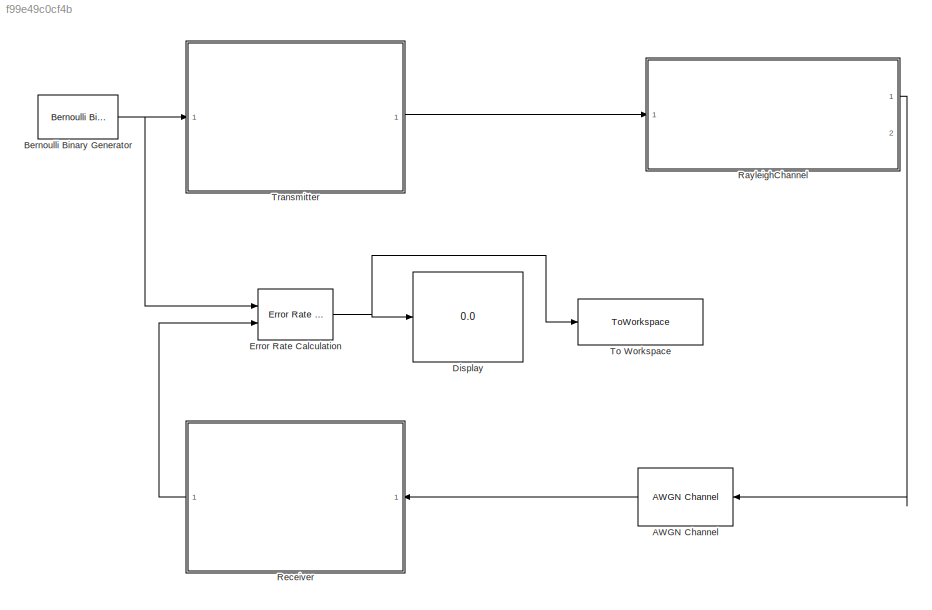
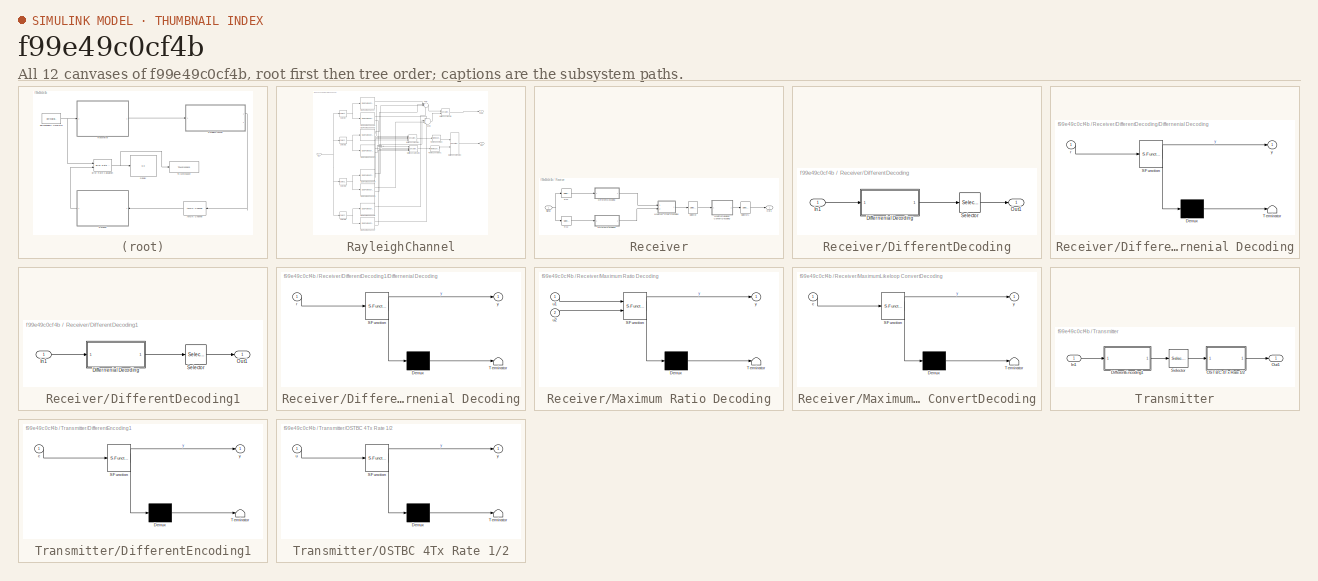
[diagram: thumbnail index - all 12 canvases of the model, root first then tree order]
MODEL slx_f99e49c0cf4b
KIND model
CONFIG AbsTol = auto
CONFIG EnableMultiTasking = off
CONFIG FixedStep = auto
CONFIG MaxStep = auto
CONFIG MinStep = auto
CONFIG RelTol = 1e-3
CONFIG SampleTimeConstraint = Unconstrained
CONFIG Solver = VariableStepAuto
CONFIG SolverName = VariableStepAuto
CONFIG StartTime = 0.0
CONFIG StopTime = 1
WORKSPACE source: MAT-file member
WORKSPACE FrameLength = 100
BLOCK [Reference] AWGN Channel  REF=commchan3/AWGN
Channel
  Ports = [1, 1]
  SourceBlock = commchan3/AWGN\nChannel
  SourceProductBaseCode = CM
  SourceProductName = Communications System Toolbox
  SourceType = AWGN Channel
  UserDataPersistent = on
BLOCK [Reference] Bernoulli Binary Generator  REF=commrandsrc3/Bernoulli Binary
Generator
  Ports = [0, 1]
  SourceBlock = commrandsrc3/Bernoulli Binary\nGenerator
  SourceProductBaseCode = CM
  SourceProductName = Communications System Toolbox
  SourceType = Bernoulli Binary Generator
BLOCK [Display] Display
  Decimation = 1
  Ports = [1]
BLOCK [Reference] Error Rate Calculation  REF=commsink2/Error Rate
Calculation
  Ports = [2, 1]
  SourceBlock = commsink2/Error Rate\nCalculation
  SourceProductBaseCode = CM
  SourceProductName = Communications System Toolbox
  SourceType = Error Rate Calculation
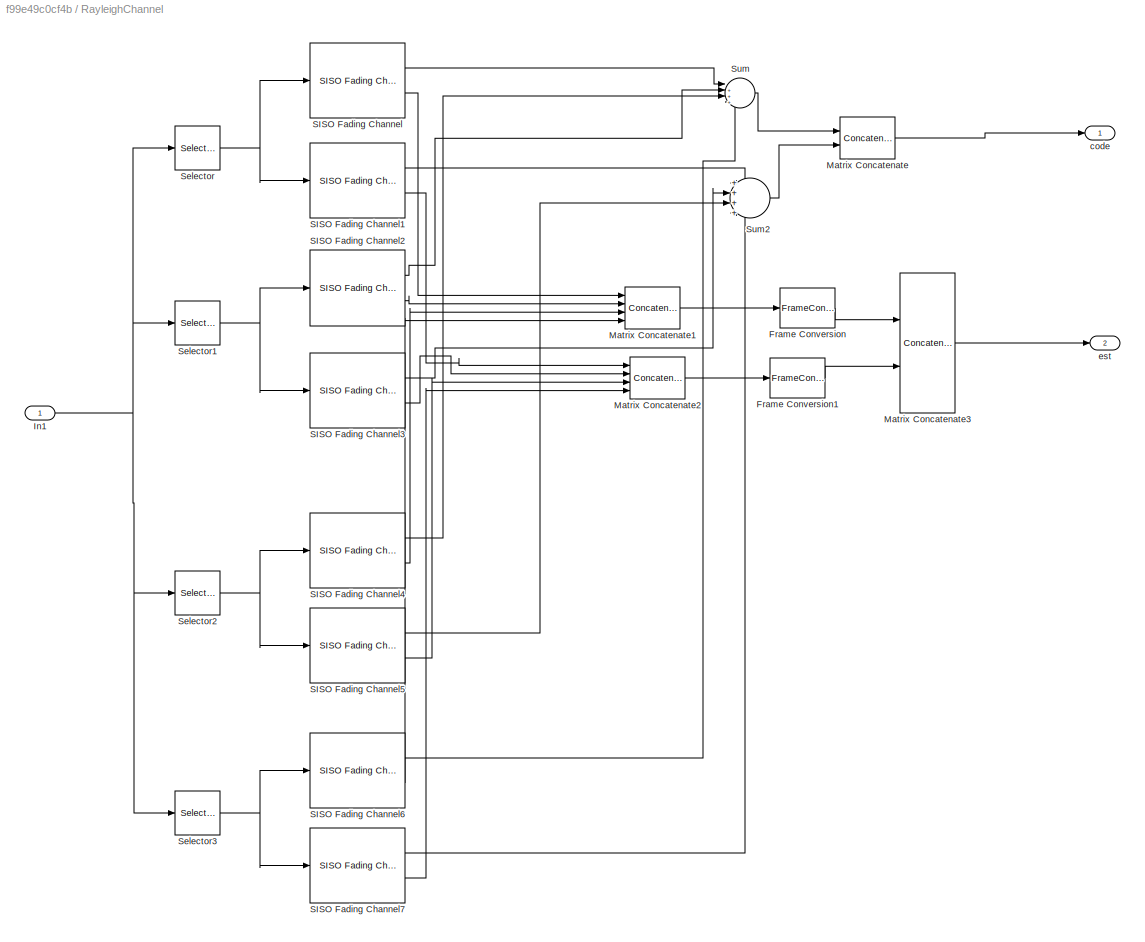
BLOCK [SubSystem] RayleighChannel
  Ports = [1, 2]
  RequestExecContextInheritance = off
BLOCK [FrameConversion] RayleighChannel/Frame Conversion
  OutFrame = Sample-based
  Ports = [1, 1]
BLOCK [FrameConversion] RayleighChannel/Frame Conversion1
  OutFrame = Sample-based
  Ports = [1, 1]
BLOCK [Inport] RayleighChannel/In1
  IconDisplay = Port number
BLOCK [Concatenate] RayleighChannel/Matrix Concatenate
  ConcatenateDimension = 2
  Mode = Multidimensional array
  Ports = [2, 1]
BLOCK [Concatenate] RayleighChannel/Matrix Concatenate1
  ConcatenateDimension = 2
  Mode = Multidimensional array
  NumInputs = 4
  Ports = [4, 1]
BLOCK [Concatenate] RayleighChannel/Matrix Concatenate2
  ConcatenateDimension = 2
  Mode = Multidimensional array
  NumInputs = 4
  Ports = [4, 1]
BLOCK [Concatenate] RayleighChannel/Matrix Concatenate3
  ConcatenateDimension = 3
  Mode = Multidimensional array
  Ports = [2, 1]
BLOCK [Reference] RayleighChannel/SISO Fading Channel  REF=commchan3/SISO Fading Channel
  Ports = [1, 2]
  SourceBlock = commchan3/SISO Fading Channel
  SourceProductBaseCode = CM
  SourceProductName = Communications System Toolbox
  SourceType = SISO Fading Channel
BLOCK [Reference] RayleighChannel/SISO Fading Channel1  REF=commchan3/SISO Fading Channel
  Ports = [1, 2]
  SourceBlock = commchan3/SISO Fading Channel
  SourceProductBaseCode = CM
  SourceProductName = Communications System Toolbox
  SourceType = SISO Fading Channel
BLOCK [Reference] RayleighChannel/SISO Fading Channel2  REF=commchan3/SISO Fading Channel
  Ports = [1, 2]
  SourceBlock = commchan3/SISO Fading Channel
  SourceProductBaseCode = CM
  SourceProductName = Communications System Toolbox
  SourceType = SISO Fading Channel
BLOCK [Reference] RayleighChannel/SISO Fading Channel3  REF=commchan3/SISO Fading Channel
  Ports = [1, 2]
  SourceBlock = commchan3/SISO Fading Channel
  SourceProductBaseCode = CM
  SourceProductName = Communications System Toolbox
  SourceType = SISO Fading Channel
BLOCK [Reference] RayleighChannel/SISO Fading Channel4  REF=commchan3/SISO Fading Channel
  Ports = [1, 2]
  SourceBlock = commchan3/SISO Fading Channel
  SourceProductBaseCode = CM
  SourceProductName = Communications System Toolbox
  SourceType = SISO Fading Channel
BLOCK [Reference] RayleighChannel/SISO Fading Channel5  REF=commchan3/SISO Fading Channel
  Ports = [1, 2]
  SourceBlock = commchan3/SISO Fading Channel
  SourceProductBaseCode = CM
  SourceProductName = Communications System Toolbox
  SourceType = SISO Fading Channel
BLOCK [Reference] RayleighChannel/SISO Fading Channel6  REF=commchan3/SISO Fading Channel
  Ports = [1, 2]
  SourceBlock = commchan3/SISO Fading Channel
  SourceProductBaseCode = CM
  SourceProductName = Communications System Toolbox
  SourceType = SISO Fading Channel
BLOCK [Reference] RayleighChannel/SISO Fading Channel7  REF=commchan3/SISO Fading Channel
  Ports = [1, 2]
  SourceBlock = commchan3/SISO Fading Channel
  SourceProductBaseCode = CM
  SourceProductName = Communications System Toolbox
  SourceType = SISO Fading Channel
BLOCK [Selector] RayleighChannel/Selector
  IndexOptions = Select all,Index vector (dialog)
  Indices = [1 3],1
  InputPortWidth = 3
  NumberOfDimensions = 2
  OutputSizes = 1,1
  Ports = [1, 1]
BLOCK [Selector] RayleighChannel/Selector1
  IndexOptions = Select all,Index vector (dialog)
  Indices = [1 3],2
  InputPortWidth = 3
  NumberOfDimensions = 2
  OutputSizes = 1,1
  Ports = [1, 1]
BLOCK [Selector] RayleighChannel/Selector2
  IndexOptions = Select all,Index vector (dialog)
  Indices = [1 3],3
  InputPortWidth = 3
  NumberOfDimensions = 2
  OutputSizes = 1,1
  Ports = [1, 1]
BLOCK [Selector] RayleighChannel/Selector3
  IndexOptions = Select all,Index vector (dialog)
  Indices = [1 3],4
  InputPortWidth = 3
  NumberOfDimensions = 2
  OutputSizes = 1,1
  Ports = [1, 1]
BLOCK [Sum] RayleighChannel/Sum
  IconShape = round
  InputSameDT = off
  Inputs = |++++
  OutDataTypeStr = Inherit: Inherit via internal rule
  Ports = [4, 1]
  SaturateOnIntegerOverflow = off
BLOCK [Sum] RayleighChannel/Sum2
  IconShape = round
  InputSameDT = off
  Inputs = ++++
  OutDataTypeStr = Inherit: Inherit via internal rule
  Ports = [4, 1]
  SaturateOnIntegerOverflow = off
BLOCK [Outport] RayleighChannel/code
  IconDisplay = Port number
BLOCK [Outport] RayleighChannel/est
  IconDisplay = Port number
  Port = 2
BLOCK [SubSystem] Receiver
  Ports = [1, 1]
  RequestExecContextInheritance = off
BLOCK [SubSystem] Receiver/DifferentDecoding
  Ports = [1, 1]
  RequestExecContextInheritance = off
BLOCK [SubSystem] Receiver/DifferentDecoding/Differnenial Decoding
  ErrorFcn = Stateflow.Translate.translate
  PermitHierarchicalResolution = ExplicitOnly
  Ports = [1, 1]
  RequestExecContextInheritance = off
  SFBlockType = MATLAB Function
  TreatAsAtomicUnit = on
BLOCK [Demux] Receiver/DifferentDecoding/Differnenial Decoding/ Demux 
  Outputs = 1
  Ports = [1, 1]
BLOCK [S-Function] Receiver/DifferentDecoding/Differnenial Decoding/ SFunction 
  EnableBusSupport = on
  FunctionName = sf_sfun
  PortCounts = [1 2]
  Ports = [1, 2]
  SFcnIsStateOwnerBlock = off
  SFunctionDeploymentMode = off
  Tag = Stateflow S-Function naibaoDSTBC_42 2
BLOCK [Terminator] Receiver/DifferentDecoding/Differnenial Decoding/ Terminator 
BLOCK [Inport] Receiver/DifferentDecoding/Differnenial Decoding/r
  IconDisplay = Port number
BLOCK [Outport] Receiver/DifferentDecoding/Differnenial Decoding/y
  IconDisplay = Port number
BLOCK [Inport] Receiver/DifferentDecoding/In1
  IconDisplay = Port number
BLOCK [Outport] Receiver/DifferentDecoding/Out1
  IconDisplay = Port number
BLOCK [Selector] Receiver/DifferentDecoding/Selector
  IndexOptions = Select all,Index vector (dialog)
  Indices = [1 3],1
  InputPortWidth = 3
  NumberOfDimensions = 2
  OutputSizes = 1,1
  Ports = [1, 1]
BLOCK [SubSystem] Receiver/DifferentDecoding1
  Ports = [1, 1]
  RequestExecContextInheritance = off
BLOCK [SubSystem] Receiver/DifferentDecoding1/Differnenial Decoding
  ErrorFcn = Stateflow.Translate.translate
  PermitHierarchicalResolution = ExplicitOnly
  Ports = [1, 1]
  RequestExecContextInheritance = off
  SFBlockType = MATLAB Function
  TreatAsAtomicUnit = on
BLOCK [Demux] Receiver/DifferentDecoding1/Differnenial Decoding/ Demux 
  Outputs = 1
  Ports = [1, 1]
BLOCK [S-Function] Receiver/DifferentDecoding1/Differnenial Decoding/ SFunction 
  EnableBusSupport = on
  FunctionName = sf_sfun
  PortCounts = [1 2]
  Ports = [1, 2]
  SFcnIsStateOwnerBlock = off
  SFunctionDeploymentMode = off
  Tag = Stateflow S-Function naibaoDSTBC_42 3
BLOCK [Terminator] Receiver/DifferentDecoding1/Differnenial Decoding/ Terminator 
BLOCK [Inport] Receiver/DifferentDecoding1/Differnenial Decoding/r
  IconDisplay = Port number
BLOCK [Outport] Receiver/DifferentDecoding1/Differnenial Decoding/y
  IconDisplay = Port number
BLOCK [Inport] Receiver/DifferentDecoding1/In1
  IconDisplay = Port number
BLOCK [Outport] Receiver/DifferentDecoding1/Out1
  IconDisplay = Port number
BLOCK [Selector] Receiver/DifferentDecoding1/Selector
  IndexOptions = Select all,Index vector (dialog)
  Indices = [1 3],1
  InputPortWidth = 3
  NumberOfDimensions = 2
  OutputSizes = 1,1
  Ports = [1, 1]
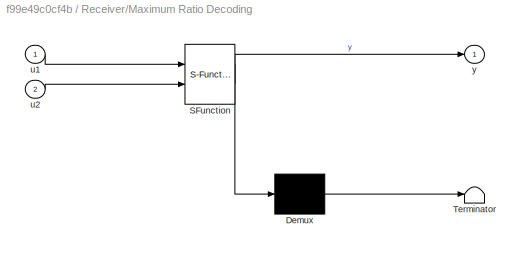
BLOCK [SubSystem] Receiver/Maximum Ratio Decoding
  ErrorFcn = Stateflow.Translate.translate
  PermitHierarchicalResolution = ExplicitOnly
  Ports = [2, 1]
  RequestExecContextInheritance = off
  SFBlockType = MATLAB Function
  TreatAsAtomicUnit = on
BLOCK [Demux] Receiver/Maximum Ratio Decoding/ Demux 
  Outputs = 1
  Ports = [1, 1]
BLOCK [S-Function] Receiver/Maximum Ratio Decoding/ SFunction 
  EnableBusSupport = on
  FunctionName = sf_sfun
  PortCounts = [2 2]
  Ports = [2, 2]
  SFcnIsStateOwnerBlock = off
  SFunctionDeploymentMode = off
  Tag = Stateflow S-Function naibaoDSTBC_42 5
BLOCK [Terminator] Receiver/Maximum Ratio Decoding/ Terminator 
BLOCK [Inport] Receiver/Maximum Ratio Decoding/u1
  IconDisplay = Port number
BLOCK [Inport] Receiver/Maximum Ratio Decoding/u2
  IconDisplay = Port number
  Port = 2
BLOCK [Outport] Receiver/Maximum Ratio Decoding/y
  IconDisplay = Port number
BLOCK [SubSystem] Receiver/MaximumLikeloop ConvertDecoding
  ErrorFcn = Stateflow.Translate.translate
  PermitHierarchicalResolution = ExplicitOnly
  Ports = [1, 1]
  RequestExecContextInheritance = off
  SFBlockType = MATLAB Function
  TreatAsAtomicUnit = on
BLOCK [Demux] Receiver/MaximumLikeloop ConvertDecoding/ Demux 
  Outputs = 1
  Ports = [1, 1]
BLOCK [S-Function] Receiver/MaximumLikeloop ConvertDecoding/ SFunction 
  EnableBusSupport = on
  FunctionName = sf_sfun
  PortCounts = [1 2]
  Ports = [1, 2]
  SFcnIsStateOwnerBlock = off
  SFunctionDeploymentMode = off
  Tag = Stateflow S-Function naibaoDSTBC_42 6
BLOCK [Terminator] Receiver/MaximumLikeloop ConvertDecoding/ Terminator 
BLOCK [Inport] Receiver/MaximumLikeloop ConvertDecoding/c
  IconDisplay = Port number
BLOCK [Outport] Receiver/MaximumLikeloop ConvertDecoding/y
  IconDisplay = Port number
BLOCK [Outport] Receiver/Out1
  IconDisplay = Port number
BLOCK [Selector] Receiver/Rx1
  IndexOptions = Select all,Index vector (dialog)
  Indices = [1 3],1
  InputPortWidth = 3
  NumberOfDimensions = 2
  OutputSizes = 1,1
  Ports = [1, 1]
BLOCK [Selector] Receiver/Rx2
  IndexOptions = Select all,Index vector (dialog)
  Indices = [1 3],2
  InputPortWidth = 3
  NumberOfDimensions = 2
  OutputSizes = 1,1
  Ports = [1, 1]
BLOCK [Selector] Receiver/Selector
  IndexOptions = Select all,Index vector (dialog)
  Indices = [1 3],1
  InputPortWidth = 3
  NumberOfDimensions = 2
  OutputSizes = 1,1
  Ports = [1, 1]
BLOCK [Selector] Receiver/Selector1
  IndexOptions = Select all,Index vector (dialog)
  Indices = [1 3],1
  InputPortWidth = 3
  NumberOfDimensions = 2
  OutputSizes = 1,1
  Ports = [1, 1]
BLOCK [Inport] Receiver/Signal
  IconDisplay = Port number
BLOCK [ToWorkspace] To Workspace
  FixptAsFi = on
  MaxDataPoints = 1
  Ports = [1]
  SampleTime = -1
  Save2DSignal = 2-D array (concatenate along first dimension)
  VariableName = BER_DSTBC_42
BLOCK [SubSystem] Transmitter
  Ports = [1, 1]
  RequestExecContextInheritance = off
BLOCK [SubSystem] Transmitter/DifferentEncoding1
  ErrorFcn = Stateflow.Translate.translate
  PermitHierarchicalResolution = ExplicitOnly
  Ports = [1, 1]
  RequestExecContextInheritance = off
  SFBlockType = MATLAB Function
  TreatAsAtomicUnit = on
BLOCK [Demux] Transmitter/DifferentEncoding1/ Demux 
  Outputs = 1
  Ports = [1, 1]
BLOCK [S-Function] Transmitter/DifferentEncoding1/ SFunction 
  EnableBusSupport = on
  FunctionName = sf_sfun
  PortCounts = [1 2]
  Ports = [1, 2]
  SFcnIsStateOwnerBlock = off
  SFunctionDeploymentMode = off
  Tag = Stateflow S-Function naibaoDSTBC_42 1
BLOCK [Terminator] Transmitter/DifferentEncoding1/ Terminator 
BLOCK [Inport] Transmitter/DifferentEncoding1/c
  IconDisplay = Port number
BLOCK [Outport] Transmitter/DifferentEncoding1/y
  IconDisplay = Port number
BLOCK [Inport] Transmitter/In1
  IconDisplay = Port number
BLOCK [SubSystem] Transmitter/OSTBC 4Tx Rate 1//2
  ErrorFcn = Stateflow.Translate.translate
  PermitHierarchicalResolution = ExplicitOnly
  Ports = [1, 1]
  RequestExecContextInheritance = off
  SFBlockType = MATLAB Function
  TreatAsAtomicUnit = on
BLOCK [Demux] Transmitter/OSTBC 4Tx Rate 1//2/ Demux 
  Outputs = 1
  Ports = [1, 1]
BLOCK [S-Function] Transmitter/OSTBC 4Tx Rate 1//2/ SFunction 
  EnableBusSupport = on
  FunctionName = sf_sfun
  PortCounts = [1 2]
  Ports = [1, 2]
  SFcnIsStateOwnerBlock = off
  SFunctionDeploymentMode = off
  Tag = Stateflow S-Function naibaoDSTBC_42 4
BLOCK [Terminator] Transmitter/OSTBC 4Tx Rate 1//2/ Terminator 
BLOCK [Inport] Transmitter/OSTBC 4Tx Rate 1//2/u
  IconDisplay = Port number
BLOCK [Outport] Transmitter/OSTBC 4Tx Rate 1//2/y
  IconDisplay = Port number
BLOCK [Outport] Transmitter/Out1
  IconDisplay = Port number
BLOCK [Selector] Transmitter/Selector
  IndexOptions = Select all,Index vector (dialog)
  Indices = [1 3],1
  InputPortWidth = 3
  NumberOfDimensions = 2
  OutputSizes = 1,1
  Ports = [1, 1]
LINE AWGN Channel:1 -> Receiver:1
NET Bernoulli Binary Generator:1 -> Error Rate Calculation:1, Transmitter:1
NET Error Rate Calculation:1 -> Display:1, To Workspace:1
LINE RayleighChannel/Frame Conversion1:1 -> RayleighChannel/Matrix Concatenate3:2
LINE RayleighChannel/Frame Conversion:1 -> RayleighChannel/Matrix Concatenate3:1
NET RayleighChannel/In1:1 -> RayleighChannel/Selector1:1, RayleighChannel/Selector2:1, RayleighChannel/Selector3:1, RayleighChannel/Selector:1
LINE RayleighChannel/Matrix Concatenate1:1 -> RayleighChannel/Frame Conversion:1
LINE RayleighChannel/Matrix Concatenate2:1 -> RayleighChannel/Frame Conversion1:1
LINE RayleighChannel/Matrix Concatenate3:1 -> RayleighChannel/est:1
LINE RayleighChannel/Matrix Concatenate:1 -> RayleighChannel/code:1
LINE RayleighChannel/SISO Fading Channel1:1 -> RayleighChannel/Sum2:1
LINE RayleighChannel/SISO Fading Channel1:2 -> RayleighChannel/Matrix Concatenate2:1
LINE RayleighChannel/SISO Fading Channel2:1 -> RayleighChannel/Sum:2
LINE RayleighChannel/SISO Fading Channel2:2 -> RayleighChannel/Matrix Concatenate1:2
LINE RayleighChannel/SISO Fading Channel3:1 -> RayleighChannel/Sum2:2
LINE RayleighChannel/SISO Fading Channel3:2 -> RayleighChannel/Matrix Concatenate2:2
LINE RayleighChannel/SISO Fading Channel4:1 -> RayleighChannel/Sum:3
LINE RayleighChannel/SISO Fading Channel4:2 -> RayleighChannel/Matrix Concatenate1:3
LINE RayleighChannel/SISO Fading Channel5:1 -> RayleighChannel/Sum2:3
LINE RayleighChannel/SISO Fading Channel5:2 -> RayleighChannel/Matrix Concatenate2:3
LINE RayleighChannel/SISO Fading Channel6:1 -> RayleighChannel/Sum:4
LINE RayleighChannel/SISO Fading Channel6:2 -> RayleighChannel/Matrix Concatenate1:4
LINE RayleighChannel/SISO Fading Channel7:1 -> RayleighChannel/Sum2:4
LINE RayleighChannel/SISO Fading Channel7:2 -> RayleighChannel/Matrix Concatenate2:4
LINE RayleighChannel/SISO Fading Channel:1 -> RayleighChannel/Sum:1
LINE RayleighChannel/SISO Fading Channel:2 -> RayleighChannel/Matrix Concatenate1:1
NET RayleighChannel/Selector1:1 -> RayleighChannel/SISO Fading Channel2:1, RayleighChannel/SISO Fading Channel3:1
NET RayleighChannel/Selector2:1 -> RayleighChannel/SISO Fading Channel4:1, RayleighChannel/SISO Fading Channel5:1
NET RayleighChannel/Selector3:1 -> RayleighChannel/SISO Fading Channel6:1, RayleighChannel/SISO Fading Channel7:1
NET RayleighChannel/Selector:1 -> RayleighChannel/SISO Fading Channel1:1, RayleighChannel/SISO Fading Channel:1
LINE RayleighChannel/Sum2:1 -> RayleighChannel/Matrix Concatenate:2
LINE RayleighChannel/Sum:1 -> RayleighChannel/Matrix Concatenate:1
LINE RayleighChannel:1 -> AWGN Channel:1
LINE Receiver/DifferentDecoding/Differnenial Decoding:1 -> Receiver/DifferentDecoding/Selector:1
LINE Receiver/DifferentDecoding/In1:1 -> Receiver/DifferentDecoding/Differnenial Decoding:1
LINE Receiver/DifferentDecoding/Selector:1 -> Receiver/DifferentDecoding/Out1:1
LINE Receiver/DifferentDecoding1/Differnenial Decoding:1 -> Receiver/DifferentDecoding1/Selector:1
LINE Receiver/DifferentDecoding1/In1:1 -> Receiver/DifferentDecoding1/Differnenial Decoding:1
LINE Receiver/DifferentDecoding1/Selector:1 -> Receiver/DifferentDecoding1/Out1:1
LINE Receiver/DifferentDecoding1:1 -> Receiver/Maximum Ratio Decoding:2
LINE Receiver/DifferentDecoding:1 -> Receiver/Maximum Ratio Decoding:1
LINE Receiver/Maximum Ratio Decoding:1 -> Receiver/Selector:1
LINE Receiver/MaximumLikeloop ConvertDecoding:1 -> Receiver/Selector1:1
LINE Receiver/Rx1:1 -> Receiver/DifferentDecoding:1
LINE Receiver/Rx2:1 -> Receiver/DifferentDecoding1:1
LINE Receiver/Selector1:1 -> Receiver/Out1:1
LINE Receiver/Selector:1 -> Receiver/MaximumLikeloop ConvertDecoding:1
NET Receiver/Signal:1 -> Receiver/Rx1:1, Receiver/Rx2:1
LINE Receiver:1 -> Error Rate Calculation:2
LINE Transmitter/DifferentEncoding1:1 -> Transmitter/Selector:1
LINE Transmitter/In1:1 -> Transmitter/DifferentEncoding1:1
LINE Transmitter/OSTBC 4Tx Rate 1//2:1 -> Transmitter/Out1:1
LINE Transmitter/Selector:1 -> Transmitter/OSTBC 4Tx Rate 1//2:1
LINE Transmitter:1 -> RayleighChannel:1
note: NET lines group one-source signal fan-out (src -> all destinations, sorted); 1:1 wires keep LINE
CHART Transmitter/DifferentEncoding1 states=1 transitions=1
  STATE_LABEL 'eML_blk_kernel()'
  STATE_LABEL 'SCRIPT:\nfunction y = DifferentEncoding4(c)\n%将输入的码字按规则映射，之后差分编码\n%% 设置参数\ntemp=complex(zeros(8,1));\n%计数变量\nnum=0+0i;\n%得到帧长\ns = size(c);\n%计算BPSK的长度\nBPSK_Len = s(1);\n%初始化系数序列\nu = complex(zeros(BPSK_Len,1));\n%初始编码\nx1=1/2+0i;\nx2=1/2+0i;\nx3=1/2+0i;\nx4=1/2+0i;\n%初始化发送序列\ny=complex(zeros(BPSK_Len+4,2));\ny(1,1)=x1;\ny(2,1)=x2;\ny(3,1)=x3;\ny(4,1)=x4;\n%Naibao编码映射矩阵\nw=[ 1 0 0 0           ; 0.5 -0.5 0.5 -0.5 ; 0.5 0....<+1311ch>'
CHART Receiver/DifferentDecoding/Differnenial Decoding states=1 transitions=1
  STATE_LABEL 'eML_blk_kernel()'
  STATE_LABEL "SCRIPT:\nfunction y = DiffernenialDecoding(r)\n%输出解码序列\n%% 基本参数\n% 获取帧长\ns=size(r);\nFrameLen=s(1);\n% 初始化输出序列\ny=complex(zeros( (FrameLen-8)/2,2));\n%% 计算系数\nfor i=1:FrameLen/8-1\n    % 接收到的当前分组符号\n    R1=[r(8*(i-1)+1),r(8*(i-1)+2),r(8*(i-1)+3),r(8*(i-1)+4),r(8*(i-1)+5)',r(8*(i-1)+6)',r(8*(i-1)+7)',r(8*(i-1)+8)'];\n    R2=[r(8*(i-1)+2),-r(8*(i-1)+1),-r(8*(i-1)+4),r(8*(i-1)+3),r(8*(i-1)+6)',-r(8*(i-1)+5)',-r(8...<+511ch>"
CHART Receiver/DifferentDecoding1/Differnenial Decoding states=1 transitions=1
  STATE_LABEL 'eML_blk_kernel()'
  STATE_LABEL "SCRIPT:\nfunction y = DiffernenialDecoding(r)\n%输出解码序列\n%% 基本参数\n% 获取帧长\ns=size(r);\nFrameLen=s(1);\n% 初始化输出序列\ny=complex(zeros( (FrameLen-8)/2,2));\n%% 计算系数\nfor i=1:FrameLen/8-1\n    % 接收到的当前分组符号\n    R1=[r(8*(i-1)+1),r(8*(i-1)+2),r(8*(i-1)+3),r(8*(i-1)+4),r(8*(i-1)+5)',r(8*(i-1)+6)',r(8*(i-1)+7)',r(8*(i-1)+8)'];\n    R2=[r(8*(i-1)+2),-r(8*(i-1)+1),-r(8*(i-1)+4),r(8*(i-1)+3),r(8*(i-1)+6)',-r(8*(i-1)+5)',-r(8...<+509ch>"
CHART Transmitter/OSTBC 4Tx Rate 1//2 states=1 transitions=1
  STATE_LABEL 'eML_blk_kernel()'
  STATE_LABEL 'SCRIPT:\nfunction y = naibaoOSTBC4(u)\n%% 基本参数\n%获取帧长\ns=size(u);\nFrameLen=s(1);\n%初始化发射序列\ny=complex(zeros(2*FrameLen,4));\n%开始编码\nfor i=1:FrameLen/4\n    x1=u(4*(i-1)+1);\n    x2=u(4*(i-1)+2);\n    x3=u(4*(i-1)+3);\n    x4=u(4*(i-1)+4);\n    y(8*(i-1)+1 : 8*(i-1)+8 ,1:4)=[x1,x2,x3,x4;\n                                  -x2,x1,-x4,x3;\n                                  -x3,x4,x1,-x2;\n                           ...<+237ch>'
CHART Receiver/Maximum Ratio Decoding states=1 transitions=1
  STATE_LABEL 'eML_blk_kernel()'
  STATE_LABEL 'SCRIPT:\nfunction y = mrd(u1,u2)\n%两条信道完全对称,直接等增益合并\ns=size(u1);\ny=complex( zeros(s(1),2));\nfor i=1:s(1)\n    y(i,1)=(u1(i)+u2(i))/2;\nend\n'
CHART Receiver/MaximumLikeloop
ConvertDecoding states=1 transitions=1
  STATE_LABEL 'eML_blk_kernel()'
  STATE_LABEL 'SCRIPT:\nfunction y  = MLC(c)\n% 最大似然译码+逆映射\n% 获取帧长\ns=size(c);\nFrameLen=s(1);\n%初始化y\ny=logical(zeros(FrameLen,2)); %#ok<LOGL>\n%% 最大似然译码+逆映射\n% naibao编码矩阵\nallowcode=[ 1 0 0 0           ; 0.5 -0.5 0.5 -0.5 ; 0.5 0.5 -0.5 -0.5 ; 0 0 0 -1           ;\n    0.5 -0.5 -0.5 0.5 ; 0 -1 0 0          ; 0 0 -1 0          ; -0.5 -0.5 -0.5 -0.5;\n    0.5 0.5 0.5 0.5   ; 0 0 1 0           ; 0 1 0 0           ; -0.5 0.5 ...<+1137ch>'
